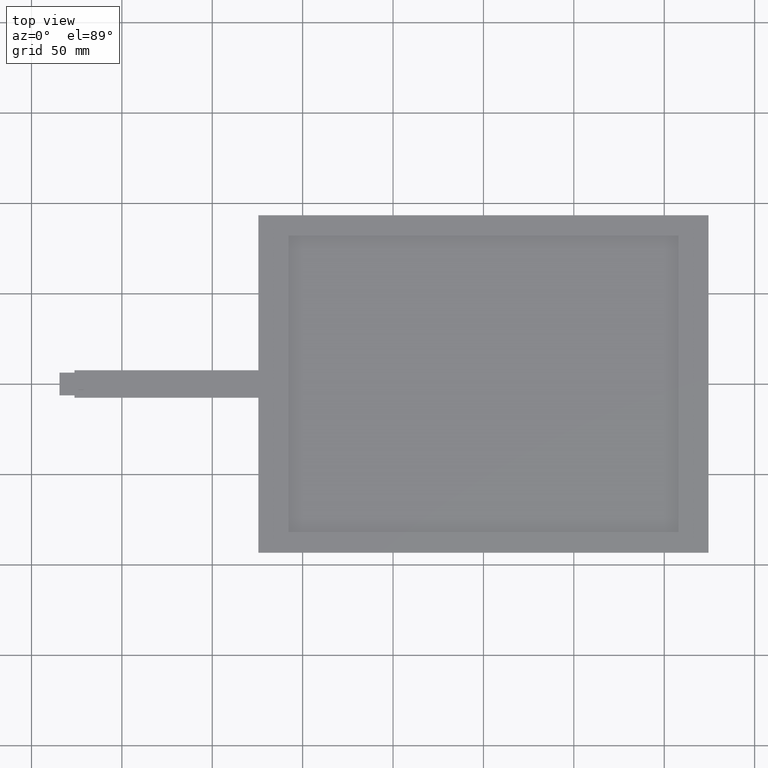
[diagram: clean part render]
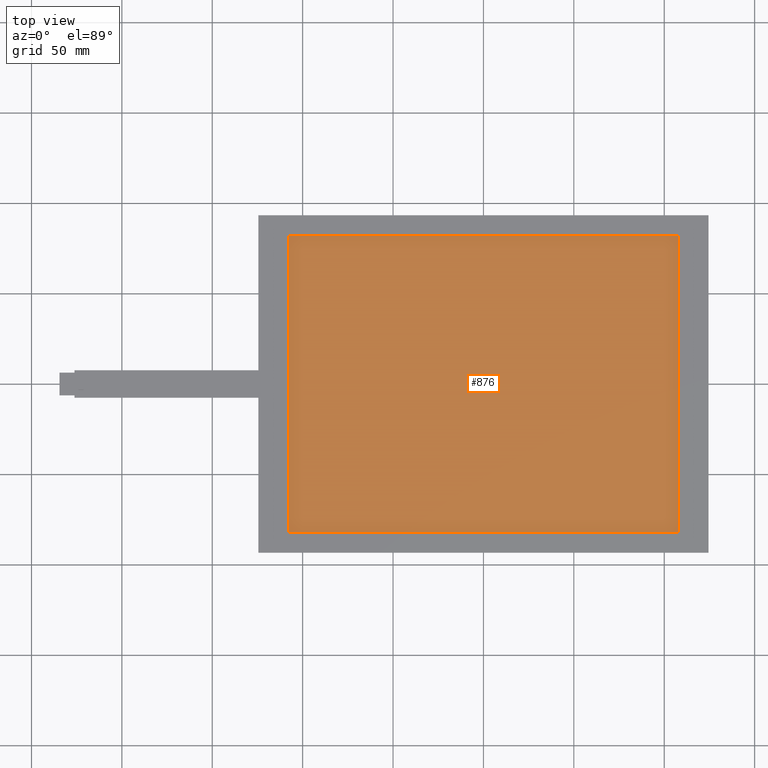
[diagram: same view with one face highlighted and labeled with its STEP entity id]
A machine part, top view. The second image highlights one B-rep face of the part: STEP entity #876.
In plain terms, the highlighted planar face has unit normal (0, 0, -1).
Its self-contained STEP definition (entity closure, byte-faithful):
#98=FACE_OUTER_BOUND('',#142,.T.);
#142=EDGE_LOOP('',(#761,#762,#763,#764));
#243=LINE('',#1338,#357);
#247=LINE('',#1345,#361);
#250=LINE('',#1351,#364);
#252=LINE('',#1354,#366);
#357=VECTOR('',#1106,10.);
#361=VECTOR('',#1112,10.);
#364=VECTOR('',#1117,10.);
#366=VECTOR('',#1121,10.);
#441=VERTEX_POINT('',#1335);
#442=VERTEX_POINT('',#1337);
#444=VERTEX_POINT('',#1343);
#446=VERTEX_POINT('',#1349);
#547=EDGE_CURVE('',#441,#442,#243,.T.);
#551=EDGE_CURVE('',#444,#441,#247,.T.);
#554=EDGE_CURVE('',#446,#444,#250,.T.);
#556=EDGE_CURVE('',#442,#446,#252,.T.);
#761=ORIENTED_EDGE('',*,*,#556,.F.);
#762=ORIENTED_EDGE('',*,*,#547,.F.);
#763=ORIENTED_EDGE('',*,*,#551,.F.);
#764=ORIENTED_EDGE('',*,*,#554,.F.);
#833=PLANE('',#939);
#876=ADVANCED_FACE('',(#98),#833,.F.);
#939=AXIS2_PLACEMENT_3D('',#1355,#1122,#1123);
#1106=DIRECTION('',(0.,1.,0.));
#1112=DIRECTION('',(-1.,0.,0.));
#1117=DIRECTION('',(0.,-1.,0.));
#1121=DIRECTION('',(1.,0.,0.));
#1122=DIRECTION('center_axis',(0.,0.,-1.));
#1123=DIRECTION('ref_axis',(-1.,0.,0.));
#1335=CARTESIAN_POINT('',(-107.95,-81.915,-0.1));
#1337=CARTESIAN_POINT('',(-107.95,81.915,-0.1));
#1338=CARTESIAN_POINT('',(-107.95,81.915,-0.1));
#1343=CARTESIAN_POINT('',(107.95,-81.915,-0.1));
#1345=CARTESIAN_POINT('',(-107.95,-81.915,-0.1));
#1349=CARTESIAN_POINT('',(107.95,81.915,-0.1));
#1351=CARTESIAN_POINT('',(107.95,-81.915,-0.1));
#1354=CARTESIAN_POINT('',(107.95,81.915,-0.1));
#1355=CARTESIAN_POINT('Origin',(0.,0.,-0.1));